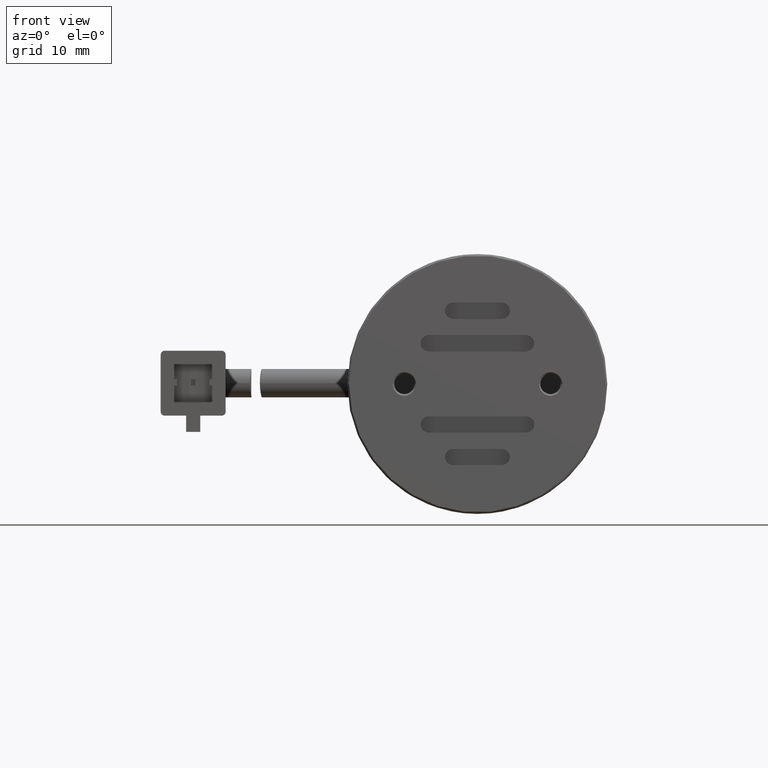
[diagram: clean part render]
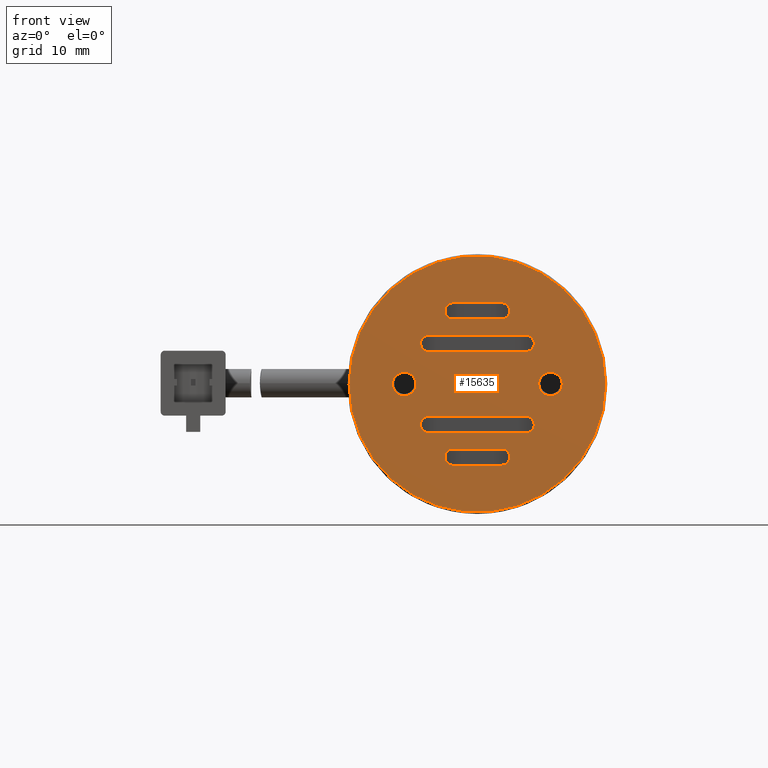
[diagram: same view with one face highlighted and labeled with its STEP entity id]
A machine part, front view. The second image highlights one B-rep face of the part: STEP entity #15635.
In plain terms, the highlighted planar face has unit normal (-0, 1, 0).
Its self-contained STEP definition (entity closure, byte-faithful):
#64 = DIRECTION ( 'NONE',  ( -1.000000000000000000, 0.0000000000000000000, 0.0000000000000000000 ) ) ;
#180 = CARTESIAN_POINT ( 'NONE',  ( -3.425066212364307600, -39.71493551001260200, -3.174035921659419400 ) ) ;
#232 = VERTEX_POINT ( 'NONE', #12365 ) ;
#234 = DIRECTION ( 'NONE',  ( -1.000000000000000000, 0.0000000000000000000, 0.0000000000000000000 ) ) ;
#301 = CARTESIAN_POINT ( 'NONE',  ( 8.574933787635693200, -39.71493551001260200, -4.174035921659418900 ) ) ;
#393 = LINE ( 'NONE', #17780, #16246 ) ;
#494 = VERTEX_POINT ( 'NONE', #8122 ) ;
#535 = DIRECTION ( 'NONE',  ( -1.000000000000000000, 0.0000000000000000000, 0.0000000000000000000 ) ) ;
#587 = AXIS2_PLACEMENT_3D ( 'NONE', #15207, #6032, #16723 ) ;
#716 = CARTESIAN_POINT ( 'NONE',  ( 10.12493378767316400, -39.71493551001260200, -9.174035921659418900 ) ) ;
#748 = CIRCLE ( 'NONE', #3211, 0.9999999999999991100 ) ;
#854 = AXIS2_PLACEMENT_3D ( 'NONE', #12386, #3206, #13930 ) ;
#1178 = CIRCLE ( 'NONE', #854, 0.9999999999999991100 ) ;
#1249 = FACE_BOUND ( 'NONE', #14480, .T. ) ;
#1263 = DIRECTION ( 'NONE',  ( -0.0000000000000000000, -1.000000000000000000, 0.0000000000000000000 ) ) ;
#1373 = DIRECTION ( 'NONE',  ( -0.0000000000000000000, -1.000000000000000000, 0.0000000000000000000 ) ) ;
#1472 = ORIENTED_EDGE ( 'NONE', *, *, #11417, .T. ) ;
#1692 = VERTEX_POINT ( 'NONE', #15891 ) ;
#1833 = DIRECTION ( 'NONE',  ( -1.000000000000000000, 0.0000000000000000000, 0.0000000000000000000 ) ) ;
#1909 = VERTEX_POINT ( 'NONE', #7614 ) ;
#1931 = AXIS2_PLACEMENT_3D ( 'NONE', #2339, #13089, #3887 ) ;
#1956 = ORIENTED_EDGE ( 'NONE', *, *, #3570, .F. ) ;
#1989 = ORIENTED_EDGE ( 'NONE', *, *, #6312, .F. ) ;
#1994 = CARTESIAN_POINT ( 'NONE',  ( -13.22506621236427400, -39.71493551001260200, -9.174035921659420700 ) ) ;
#2155 = EDGE_CURVE ( 'NONE', #494, #13588, #14010, .T. ) ;
#2212 = CARTESIAN_POINT ( 'NONE',  ( 5.574933787635692400, -39.71493551001260200, -18.17403592165942100 ) ) ;
#2245 = VECTOR ( 'NONE', #8347, 1000.000000000000000 ) ;
#2273 = DIRECTION ( 'NONE',  ( -1.000000000000000000, -0.0000000000000000000, -0.0000000000000000000 ) ) ;
#2339 = CARTESIAN_POINT ( 'NONE',  ( 5.574933787635692400, -39.71493551001260200, -0.1740359216594166700 ) ) ;
#2402 = AXIS2_PLACEMENT_3D ( 'NONE', #18426, #9267, #64 ) ;
#2408 = LINE ( 'NONE', #10018, #6497 ) ;
#2567 = ORIENTED_EDGE ( 'NONE', *, *, #7789, .F. ) ;
#2816 = ORIENTED_EDGE ( 'NONE', *, *, #16780, .F. ) ;
#3077 = LINE ( 'NONE', #11460, #10774 ) ;
#3206 = DIRECTION ( 'NONE',  ( -0.0000000000000000000, -1.000000000000000000, 0.0000000000000000000 ) ) ;
#3211 = AXIS2_PLACEMENT_3D ( 'NONE', #3805, #14555, #5374 ) ;
#3570 = EDGE_CURVE ( 'NONE', #12197, #13373, #8075, .T. ) ;
#3588 = CARTESIAN_POINT ( 'NONE',  ( 2.574933787635692400, -39.71493551001260200, -1.174035921659415800 ) ) ;
#3757 = DIRECTION ( 'NONE',  ( -1.000000000000000000, 0.0000000000000000000, 0.0000000000000000000 ) ) ;
#3793 = CARTESIAN_POINT ( 'NONE',  ( -4.425066212364306800, -39.71493551001260200, -4.174035921659417200 ) ) ;
#3805 = CARTESIAN_POINT ( 'NONE',  ( -3.425066212364307600, -39.71493551001260200, -4.174035921659417200 ) ) ;
#3880 = AXIS2_PLACEMENT_3D ( 'NONE', #14417, #5247, #15956 ) ;
#3887 = DIRECTION ( 'NONE',  ( -1.000000000000000000, 0.0000000000000000000, 0.0000000000000000000 ) ) ;
#3968 = AXIS2_PLACEMENT_3D ( 'NONE', #2212, #12959, #3757 ) ;
#4329 = VERTEX_POINT ( 'NONE', #7622 ) ;
#4387 = EDGE_LOOP ( 'NONE', ( #2816, #19049, #1956, #16217, #11982 ) ) ;
#4388 = DIRECTION ( 'NONE',  ( -0.0000000000000000000, 1.000000000000000000, -0.0000000000000000000 ) ) ;
#4471 = VERTEX_POINT ( 'NONE', #4859 ) ;
#4491 = VERTEX_POINT ( 'NONE', #12587 ) ;
#4499 = EDGE_CURVE ( 'NONE', #15948, #14593, #5381, .T. ) ;
#4859 = CARTESIAN_POINT ( 'NONE',  ( -7.875066212412783700, -39.71493551001260200, -9.174035921659418900 ) ) ;
#4863 = LINE ( 'NONE', #5702, #16613 ) ;
#4904 = ORIENTED_EDGE ( 'NONE', *, *, #5168, .F. ) ;
#5168 = EDGE_CURVE ( 'NONE', #1692, #4491, #4863, .T. ) ;
#5216 = PLANE ( 'NONE',  #12159 ) ;
#5247 = DIRECTION ( 'NONE',  ( -0.0000000000000000000, -1.000000000000000000, 0.0000000000000000000 ) ) ;
#5327 = ORIENTED_EDGE ( 'NONE', *, *, #6966, .F. ) ;
#5336 = FACE_BOUND ( 'NONE', #4387, .T. ) ;
#5374 = DIRECTION ( 'NONE',  ( -1.000000000000000000, 0.0000000000000000000, 0.0000000000000000000 ) ) ;
#5381 = CIRCLE ( 'NONE', #10001, 15.79999999999996700 ) ;
#5702 = CARTESIAN_POINT ( 'NONE',  ( 2.574933787635692400, -39.71493551001260200, -5.174035921659416300 ) ) ;
#6008 = ORIENTED_EDGE ( 'NONE', *, *, #11036, .F. ) ;
#6009 = VERTEX_POINT ( 'NONE', #13511 ) ;
#6032 = DIRECTION ( 'NONE',  ( 0.0000000000000000000, 1.000000000000000000, 0.0000000000000000000 ) ) ;
#6111 = VERTEX_POINT ( 'NONE', #9085 ) ;
#6115 = VERTEX_POINT ( 'NONE', #7525 ) ;
#6312 = EDGE_CURVE ( 'NONE', #9750, #8427, #15550, .T. ) ;
#6378 = EDGE_CURVE ( 'NONE', #6111, #11271, #14854, .T. ) ;
#6395 = EDGE_CURVE ( 'NONE', #13588, #12749, #10769, .T. ) ;
#6497 = VECTOR ( 'NONE', #19195, 1000.000000000000000 ) ;
#6565 = CIRCLE ( 'NONE', #14946, 0.9999999999999991100 ) ;
#6595 = AXIS2_PLACEMENT_3D ( 'NONE', #301, #11052, #1833 ) ;
#6688 = VECTOR ( 'NONE', #2273, 1000.000000000000000 ) ;
#6745 = ORIENTED_EDGE ( 'NONE', *, *, #12593, .F. ) ;
#6754 = CARTESIAN_POINT ( 'NONE',  ( -0.4250662123643071400, -39.71493551001260200, 0.8259640783405825000 ) ) ;
#6822 = DIRECTION ( 'NONE',  ( -0.0000000000000000000, 1.000000000000000000, 0.0000000000000000000 ) ) ;
#6835 = ORIENTED_EDGE ( 'NONE', *, *, #2155, .F. ) ;
#6863 = CIRCLE ( 'NONE', #8592, 0.9999999999999991100 ) ;
#6966 = EDGE_CURVE ( 'NONE', #17656, #6009, #1178, .T. ) ;
#7346 = CIRCLE ( 'NONE', #1931, 0.9999999999999991100 ) ;
#7401 = ORIENTED_EDGE ( 'NONE', *, *, #4499, .F. ) ;
#7463 = CARTESIAN_POINT ( 'NONE',  ( 2.574933787635692400, -39.71493551001260200, -15.17403592165942100 ) ) ;
#7505 = EDGE_LOOP ( 'NONE', ( #19185, #6835, #2567, #19725, #8582 ) ) ;
#7523 = DIRECTION ( 'NONE',  ( -0.0000000000000000000, -1.000000000000000000, 0.0000000000000000000 ) ) ;
#7525 = CARTESIAN_POINT ( 'NONE',  ( 13.02493378759822400, -39.71493551001260200, -9.174035921659418900 ) ) ;
#7545 = EDGE_CURVE ( 'NONE', #15644, #6115, #19121, .T. ) ;
#7614 = CARTESIAN_POINT ( 'NONE',  ( 8.574933787635693200, -39.71493551001260200, -3.174035921659420300 ) ) ;
#7622 = CARTESIAN_POINT ( 'NONE',  ( -4.975066212315833300, -39.71493551001260200, -9.174035921659418900 ) ) ;
#7646 = DIRECTION ( 'NONE',  ( -0.0000000000000000000, -1.000000000000000000, 0.0000000000000000000 ) ) ;
#7669 = CIRCLE ( 'NONE', #2402, 1.450000000048475000 ) ;
#7789 = EDGE_CURVE ( 'NONE', #16197, #494, #6863, .T. ) ;
#7791 = CARTESIAN_POINT ( 'NONE',  ( 8.574933787635693200, -39.71493551001260200, -14.17403592165942100 ) ) ;
#7809 = VERTEX_POINT ( 'NONE', #15291 ) ;
#7888 = VECTOR ( 'NONE', #10601, 1000.000000000000000 ) ;
#8013 = DIRECTION ( 'NONE',  ( 0.0000000000000000000, 1.000000000000000000, 0.0000000000000000000 ) ) ;
#8059 = CARTESIAN_POINT ( 'NONE',  ( 5.574933787635692400, -39.71493551001260200, -1.174035921659415800 ) ) ;
#8075 = CIRCLE ( 'NONE', #8290, 0.9999999999999991100 ) ;
#8077 = ORIENTED_EDGE ( 'NONE', *, *, #9908, .F. ) ;
#8122 = CARTESIAN_POINT ( 'NONE',  ( -3.425066212364307600, -39.71493551001260200, -15.17403592165942100 ) ) ;
#8290 = AXIS2_PLACEMENT_3D ( 'NONE', #10462, #1263, #11990 ) ;
#8347 = DIRECTION ( 'NONE',  ( 1.000000000000000000, 0.0000000000000000000, 0.0000000000000000000 ) ) ;
#8408 = ORIENTED_EDGE ( 'NONE', *, *, #18143, .F. ) ;
#8427 = VERTEX_POINT ( 'NONE', #3793 ) ;
#8582 = ORIENTED_EDGE ( 'NONE', *, *, #16902, .F. ) ;
#8592 = AXIS2_PLACEMENT_3D ( 'NONE', #16804, #7646, #18367 ) ;
#8766 = CARTESIAN_POINT ( 'NONE',  ( 11.57493378763569300, -39.71493551001260200, -9.174035921659418900 ) ) ;
#8938 = FACE_BOUND ( 'NONE', #14707, .T. ) ;
#9052 = CARTESIAN_POINT ( 'NONE',  ( 2.574933787635692400, -39.71493551001260200, -3.174035921659420300 ) ) ;
#9085 = CARTESIAN_POINT ( 'NONE',  ( 5.574933787635692400, -39.71493551001260200, -17.17403592165942400 ) ) ;
#9267 = DIRECTION ( 'NONE',  ( -0.0000000000000000000, 1.000000000000000000, -0.0000000000000000000 ) ) ;
#9344 = DIRECTION ( 'NONE',  ( -1.000000000000000000, 0.0000000000000000000, 0.0000000000000000000 ) ) ;
#9445 = DIRECTION ( 'NONE',  ( -0.0000000000000000000, 1.000000000000000000, -0.0000000000000000000 ) ) ;
#9482 = CIRCLE ( 'NONE', #6595, 0.9999999999999991100 ) ;
#9749 = DIRECTION ( 'NONE',  ( -0.0000000000000000000, -1.000000000000000000, 0.0000000000000000000 ) ) ;
#9750 = VERTEX_POINT ( 'NONE', #180 ) ;
#9844 = CIRCLE ( 'NONE', #16809, 1.449999999962529900 ) ;
#9904 = FACE_BOUND ( 'NONE', #19770, .T. ) ;
#9908 = EDGE_CURVE ( 'NONE', #6009, #13773, #16124, .T. ) ;
#10001 = AXIS2_PLACEMENT_3D ( 'NONE', #17191, #8013, #18748 ) ;
#10018 = CARTESIAN_POINT ( 'NONE',  ( 2.574933787635692400, -39.71493551001260200, 0.8259640783405825000 ) ) ;
#10147 = ORIENTED_EDGE ( 'NONE', *, *, #7545, .T. ) ;
#10162 = DIRECTION ( 'NONE',  ( -1.000000000000000000, -0.0000000000000000000, -0.0000000000000000000 ) ) ;
#10235 = ORIENTED_EDGE ( 'NONE', *, *, #14491, .F. ) ;
#10310 = DIRECTION ( 'NONE',  ( -1.000000000000000000, 0.0000000000000000000, 0.0000000000000000000 ) ) ;
#10430 = CIRCLE ( 'NONE', #3880, 0.9999999999999991100 ) ;
#10462 = CARTESIAN_POINT ( 'NONE',  ( -0.4250662123643075300, -39.71493551001260200, -18.17403592165942400 ) ) ;
#10511 = CARTESIAN_POINT ( 'NONE',  ( 8.574933787635693200, -39.71493551001260200, -15.17403592165941900 ) ) ;
#10586 = CARTESIAN_POINT ( 'NONE',  ( -0.4250662123643075300, -39.71493551001260200, -18.17403592165942400 ) ) ;
#10601 = DIRECTION ( 'NONE',  ( -1.000000000000000000, -0.0000000000000000000, -0.0000000000000000000 ) ) ;
#10769 = CIRCLE ( 'NONE', #15832, 0.9999999999999991100 ) ;
#10774 = VECTOR ( 'NONE', #14457, 1000.000000000000000 ) ;
#10871 = CIRCLE ( 'NONE', #16619, 1.450000000048475000 ) ;
#10921 = CIRCLE ( 'NONE', #12006, 0.9999999999999991100 ) ;
#10983 = CIRCLE ( 'NONE', #3968, 0.9999999999999991100 ) ;
#11036 = EDGE_CURVE ( 'NONE', #8427, #1692, #748, .T. ) ;
#11052 = DIRECTION ( 'NONE',  ( -0.0000000000000000000, -1.000000000000000000, 0.0000000000000000000 ) ) ;
#11271 = VERTEX_POINT ( 'NONE', #18089 ) ;
#11368 = CARTESIAN_POINT ( 'NONE',  ( -1.425066212364306800, -39.71493551001260200, -18.17403592165942400 ) ) ;
#11417 = EDGE_CURVE ( 'NONE', #6115, #15644, #9844, .T. ) ;
#11460 = CARTESIAN_POINT ( 'NONE',  ( 2.574933787635692400, -39.71493551001260200, -19.17403592165942100 ) ) ;
#11471 = ORIENTED_EDGE ( 'NONE', *, *, #15842, .F. ) ;
#11486 = CARTESIAN_POINT ( 'NONE',  ( 2.574933787635692400, -39.71493551001260200, -17.17403592165942400 ) ) ;
#11547 = EDGE_CURVE ( 'NONE', #13373, #232, #3077, .T. ) ;
#11982 = ORIENTED_EDGE ( 'NONE', *, *, #6378, .F. ) ;
#11990 = DIRECTION ( 'NONE',  ( -1.000000000000000000, 0.0000000000000000000, 0.0000000000000000000 ) ) ;
#12006 = AXIS2_PLACEMENT_3D ( 'NONE', #10586, #1373, #12110 ) ;
#12110 = DIRECTION ( 'NONE',  ( -1.000000000000000000, 0.0000000000000000000, 0.0000000000000000000 ) ) ;
#12159 = AXIS2_PLACEMENT_3D ( 'NONE', #15994, #6822, #17520 ) ;
#12197 = VERTEX_POINT ( 'NONE', #11368 ) ;
#12365 = CARTESIAN_POINT ( 'NONE',  ( 5.574933787635692400, -39.71493551001260200, -19.17403592165942100 ) ) ;
#12386 = CARTESIAN_POINT ( 'NONE',  ( -0.4250662123643075300, -39.71493551001260200, -0.1740359216594149200 ) ) ;
#12468 = CIRCLE ( 'NONE', #587, 15.79999999999996700 ) ;
#12587 = CARTESIAN_POINT ( 'NONE',  ( 8.574933787635693200, -39.71493551001260200, -5.174035921659418100 ) ) ;
#12593 = EDGE_CURVE ( 'NONE', #4491, #1909, #9482, .T. ) ;
#12749 = VERTEX_POINT ( 'NONE', #13056 ) ;
#12867 = EDGE_CURVE ( 'NONE', #11271, #12197, #10921, .T. ) ;
#12959 = DIRECTION ( 'NONE',  ( -0.0000000000000000000, -1.000000000000000000, 0.0000000000000000000 ) ) ;
#13000 = FACE_BOUND ( 'NONE', #7505, .T. ) ;
#13056 = CARTESIAN_POINT ( 'NONE',  ( 8.574933787635693200, -39.71493551001260200, -13.17403592165941900 ) ) ;
#13089 = DIRECTION ( 'NONE',  ( -0.0000000000000000000, -1.000000000000000000, 0.0000000000000000000 ) ) ;
#13255 = CARTESIAN_POINT ( 'NONE',  ( -1.425066212364306800, -39.71493551001260200, -0.1740359216594149200 ) ) ;
#13318 = CARTESIAN_POINT ( 'NONE',  ( -0.4250662123643071400, -39.71493551001260200, -19.17403592165942100 ) ) ;
#13373 = VERTEX_POINT ( 'NONE', #13318 ) ;
#13511 = CARTESIAN_POINT ( 'NONE',  ( -0.4250662123643075300, -39.71493551001260200, -1.174035921659415800 ) ) ;
#13577 = EDGE_CURVE ( 'NONE', #4329, #4471, #10871, .T. ) ;
#13578 = CARTESIAN_POINT ( 'NONE',  ( -6.425066212364308500, -39.71493551001260200, -9.174035921659418900 ) ) ;
#13588 = VERTEX_POINT ( 'NONE', #10511 ) ;
#13773 = VERTEX_POINT ( 'NONE', #8059 ) ;
#13930 = DIRECTION ( 'NONE',  ( -1.000000000000000000, 0.0000000000000000000, 0.0000000000000000000 ) ) ;
#14010 = LINE ( 'NONE', #7463, #2245 ) ;
#14012 = EDGE_LOOP ( 'NONE', ( #8077, #5327, #8408, #11471, #17346 ) ) ;
#14130 = VERTEX_POINT ( 'NONE', #15222 ) ;
#14417 = CARTESIAN_POINT ( 'NONE',  ( -0.4250662123643075300, -39.71493551001260200, -0.1740359216594149200 ) ) ;
#14457 = DIRECTION ( 'NONE',  ( 1.000000000000000000, 0.0000000000000000000, 0.0000000000000000000 ) ) ;
#14480 = EDGE_LOOP ( 'NONE', ( #10147, #1472 ) ) ;
#14491 = EDGE_CURVE ( 'NONE', #14593, #15948, #12468, .T. ) ;
#14497 = EDGE_CURVE ( 'NONE', #1909, #9750, #16522, .T. ) ;
#14555 = DIRECTION ( 'NONE',  ( -0.0000000000000000000, -1.000000000000000000, 0.0000000000000000000 ) ) ;
#14593 = VERTEX_POINT ( 'NONE', #1994 ) ;
#14707 = EDGE_LOOP ( 'NONE', ( #4904, #6008, #1989, #17665, #6745 ) ) ;
#14737 = EDGE_LOOP ( 'NONE', ( #7401, #10235 ) ) ;
#14854 = LINE ( 'NONE', #11486, #6688 ) ;
#14946 = AXIS2_PLACEMENT_3D ( 'NONE', #16689, #7523, #18243 ) ;
#15123 = DIRECTION ( 'NONE',  ( -1.000000000000000000, 0.0000000000000000000, 0.0000000000000000000 ) ) ;
#15207 = CARTESIAN_POINT ( 'NONE',  ( 2.574933787635692400, -39.71493551001260200, -9.174035921659418900 ) ) ;
#15222 = CARTESIAN_POINT ( 'NONE',  ( -3.425066212364307600, -39.71493551001260200, -13.17403592165942100 ) ) ;
#15238 = ORIENTED_EDGE ( 'NONE', *, *, #13577, .T. ) ;
#15291 = CARTESIAN_POINT ( 'NONE',  ( 5.574933787635692400, -39.71493551001260200, 0.8259640783405825000 ) ) ;
#15550 = CIRCLE ( 'NONE', #19339, 0.9999999999999991100 ) ;
#15635 = ADVANCED_FACE ( 'NONE', ( #17541, #9904, #1249, #17052, #13000, #5336, #8938 ), #5216, .F. ) ;
#15641 = VERTEX_POINT ( 'NONE', #6754 ) ;
#15644 = VERTEX_POINT ( 'NONE', #716 ) ;
#15832 = AXIS2_PLACEMENT_3D ( 'NONE', #7791, #18508, #9344 ) ;
#15842 = EDGE_CURVE ( 'NONE', #7809, #15641, #2408, .T. ) ;
#15891 = CARTESIAN_POINT ( 'NONE',  ( -3.425066212364307600, -39.71493551001260200, -5.174035921659416300 ) ) ;
#15948 = VERTEX_POINT ( 'NONE', #17984 ) ;
#15956 = DIRECTION ( 'NONE',  ( -1.000000000000000000, 0.0000000000000000000, 0.0000000000000000000 ) ) ;
#15994 = CARTESIAN_POINT ( 'NONE',  ( 2.574933787635692400, -39.71493551001260200, -9.174035921659418900 ) ) ;
#16124 = LINE ( 'NONE', #3588, #19759 ) ;
#16127 = EDGE_CURVE ( 'NONE', #4471, #4329, #7669, .T. ) ;
#16197 = VERTEX_POINT ( 'NONE', #17415 ) ;
#16217 = ORIENTED_EDGE ( 'NONE', *, *, #12867, .F. ) ;
#16246 = VECTOR ( 'NONE', #10162, 1000.000000000000000 ) ;
#16390 = DIRECTION ( 'NONE',  ( 1.000000000000000000, 0.0000000000000000000, 0.0000000000000000000 ) ) ;
#16522 = LINE ( 'NONE', #9052, #7888 ) ;
#16613 = VECTOR ( 'NONE', #16390, 1000.000000000000000 ) ;
#16619 = AXIS2_PLACEMENT_3D ( 'NONE', #13578, #4388, #15123 ) ;
#16689 = CARTESIAN_POINT ( 'NONE',  ( -3.425066212364307600, -39.71493551001260200, -14.17403592165942200 ) ) ;
#16723 = DIRECTION ( 'NONE',  ( 1.000000000000000000, 0.0000000000000000000, 0.0000000000000000000 ) ) ;
#16780 = EDGE_CURVE ( 'NONE', #232, #6111, #10983, .T. ) ;
#16804 = CARTESIAN_POINT ( 'NONE',  ( -3.425066212364307600, -39.71493551001260200, -14.17403592165942200 ) ) ;
#16809 = AXIS2_PLACEMENT_3D ( 'NONE', #18607, #9445, #234 ) ;
#16902 = EDGE_CURVE ( 'NONE', #12749, #14130, #393, .T. ) ;
#17052 = FACE_OUTER_BOUND ( 'NONE', #14737, .T. ) ;
#17191 = CARTESIAN_POINT ( 'NONE',  ( 2.574933787635692400, -39.71493551001260200, -9.174035921659418900 ) ) ;
#17346 = ORIENTED_EDGE ( 'NONE', *, *, #19771, .F. ) ;
#17399 = DIRECTION ( 'NONE',  ( 1.000000000000000000, 0.0000000000000000000, 0.0000000000000000000 ) ) ;
#17415 = CARTESIAN_POINT ( 'NONE',  ( -4.425066212364306800, -39.71493551001260200, -14.17403592165942200 ) ) ;
#17520 = DIRECTION ( 'NONE',  ( 1.000000000000000000, 0.0000000000000000000, 0.0000000000000000000 ) ) ;
#17541 = FACE_BOUND ( 'NONE', #14012, .T. ) ;
#17656 = VERTEX_POINT ( 'NONE', #13255 ) ;
#17665 = ORIENTED_EDGE ( 'NONE', *, *, #14497, .F. ) ;
#17780 = CARTESIAN_POINT ( 'NONE',  ( 2.574933787635692400, -39.71493551001260200, -13.17403592165941900 ) ) ;
#17838 = EDGE_CURVE ( 'NONE', #14130, #16197, #6565, .T. ) ;
#17984 = CARTESIAN_POINT ( 'NONE',  ( 18.37493378763566200, -39.71493551001260200, -9.174035921659418900 ) ) ;
#18089 = CARTESIAN_POINT ( 'NONE',  ( -0.4250662123643075300, -39.71493551001260200, -17.17403592165942400 ) ) ;
#18143 = EDGE_CURVE ( 'NONE', #15641, #17656, #10430, .T. ) ;
#18243 = DIRECTION ( 'NONE',  ( -1.000000000000000000, 0.0000000000000000000, 0.0000000000000000000 ) ) ;
#18367 = DIRECTION ( 'NONE',  ( -1.000000000000000000, 0.0000000000000000000, 0.0000000000000000000 ) ) ;
#18426 = CARTESIAN_POINT ( 'NONE',  ( -6.425066212364308500, -39.71493551001260200, -9.174035921659418900 ) ) ;
#18508 = DIRECTION ( 'NONE',  ( -0.0000000000000000000, -1.000000000000000000, 0.0000000000000000000 ) ) ;
#18607 = CARTESIAN_POINT ( 'NONE',  ( 11.57493378763569300, -39.71493551001260200, -9.174035921659418900 ) ) ;
#18748 = DIRECTION ( 'NONE',  ( 1.000000000000000000, 0.0000000000000000000, 0.0000000000000000000 ) ) ;
#18918 = CARTESIAN_POINT ( 'NONE',  ( -3.425066212364307600, -39.71493551001260200, -4.174035921659417200 ) ) ;
#19049 = ORIENTED_EDGE ( 'NONE', *, *, #11547, .F. ) ;
#19121 = CIRCLE ( 'NONE', #19645, 1.449999999962529900 ) ;
#19185 = ORIENTED_EDGE ( 'NONE', *, *, #6395, .F. ) ;
#19195 = DIRECTION ( 'NONE',  ( -1.000000000000000000, -0.0000000000000000000, -0.0000000000000000000 ) ) ;
#19339 = AXIS2_PLACEMENT_3D ( 'NONE', #18918, #9749, #535 ) ;
#19506 = DIRECTION ( 'NONE',  ( -0.0000000000000000000, 1.000000000000000000, -0.0000000000000000000 ) ) ;
#19645 = AXIS2_PLACEMENT_3D ( 'NONE', #8766, #19506, #10310 ) ;
#19725 = ORIENTED_EDGE ( 'NONE', *, *, #17838, .F. ) ;
#19757 = ORIENTED_EDGE ( 'NONE', *, *, #16127, .T. ) ;
#19759 = VECTOR ( 'NONE', #17399, 1000.000000000000000 ) ;
#19770 = EDGE_LOOP ( 'NONE', ( #19757, #15238 ) ) ;
#19771 = EDGE_CURVE ( 'NONE', #13773, #7809, #7346, .T. ) ;